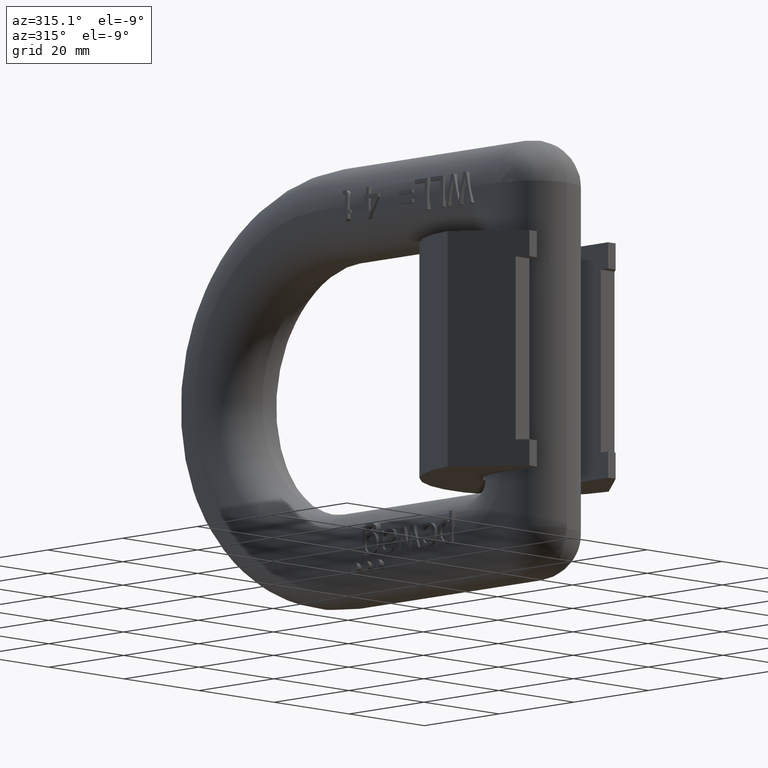
[diagram: clean part render]
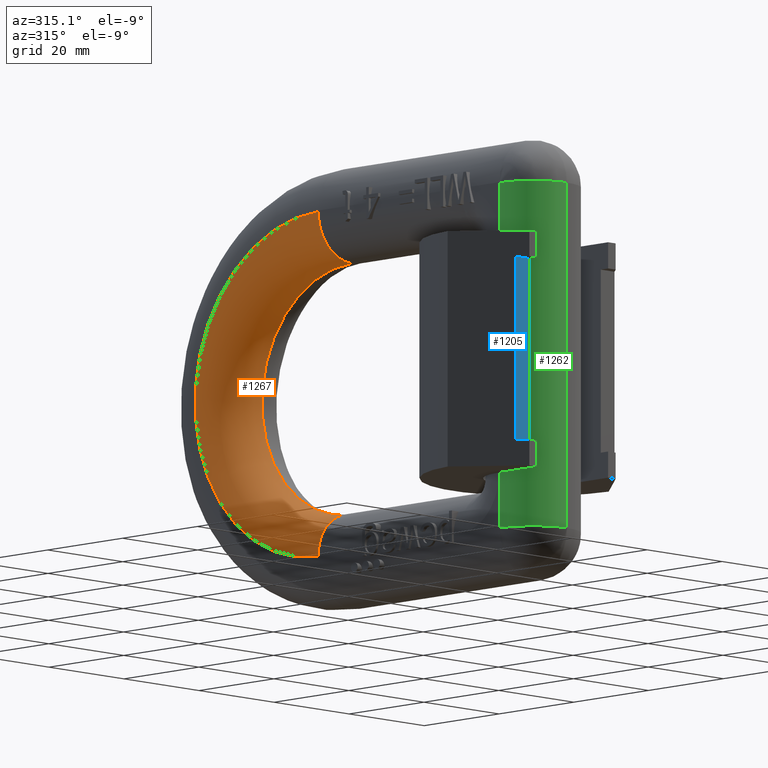
[diagram: same view with three faces highlighted in distinct colors, each labeled with its STEP entity id]
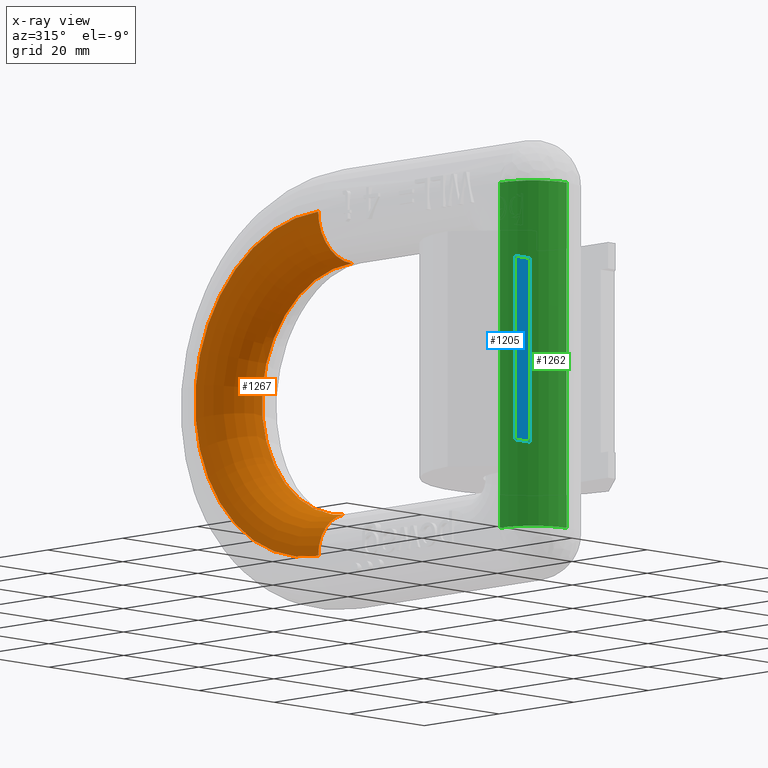
[diagram: x-ray of the same camera — body ghosted, the three highlighted faces saturated]
A machine part, auxiliary view with three faces highlighted in distinct colors.
The next image is the same camera in x-ray (body ghosted, the three faces saturated) — at least one of them is partly hidden behind the body in this view.
Their STEP definitions:

[orange] entity #1267 — the highlighted toroidal blend (fillet) surface has major radius 32.9 mm and minor (blend) radius 8.9 mm.
#159=TOROIDAL_SURFACE('',#8873,32.9,8.9);
#1267=ADVANCED_FACE('',(#1780),#159,.T.);
#1780=FACE_OUTER_BOUND('',#2224,.T.);
#2224=EDGE_LOOP('',(#3233,#3234,#3235,#3236));
#2645=CIRCLE('',#8741,24.);
#2668=CIRCLE('',#8786,8.9);
#2696=CIRCLE('',#8835,32.9);
#2699=CIRCLE('',#8850,8.9);
#3233=ORIENTED_EDGE('',*,*,#6455,.T.);
#3234=ORIENTED_EDGE('',*,*,#6230,.F.);
#3235=ORIENTED_EDGE('',*,*,#6313,.T.);
#3236=ORIENTED_EDGE('',*,*,#6426,.F.);
#5361=VERTEX_POINT('',#11088);
#5363=VERTEX_POINT('',#11094);
#5433=VERTEX_POINT('',#11306);
#5526=VERTEX_POINT('',#11922);
#6230=EDGE_CURVE('',#5363,#5361,#2645,.T.);
#6313=EDGE_CURVE('',#5363,#5433,#2668,.T.);
#6426=EDGE_CURVE('',#5526,#5433,#2696,.T.);
#6455=EDGE_CURVE('',#5526,#5361,#2699,.T.);
#8741=AXIS2_PLACEMENT_3D('',#11095,#9344,#9345);
#8786=AXIS2_PLACEMENT_3D('',#11307,#9479,#9480);
#8835=AXIS2_PLACEMENT_3D('',#11923,#9617,#9618);
#8850=AXIS2_PLACEMENT_3D('',#12088,#9658,#9659);
#8873=AXIS2_PLACEMENT_3D('',#12551,#9714,#9715);
#9344=DIRECTION('',(-1.,0.,0.));
#9345=DIRECTION('',(0.,0.,1.));
#9479=DIRECTION('',(-7.79651000439014E-16,1.,-7.79651000439014E-16));
#9480=DIRECTION('',(-1.,-7.79651000439014E-16,0.));
#9617=DIRECTION('',(1.,0.,0.));
#9618=DIRECTION('',(0.,0.,1.));
#9658=DIRECTION('',(0.,1.,7.79651000439015E-16));
#9659=DIRECTION('',(0.,-7.79651000439014E-16,1.));
#9714=DIRECTION('',(-1.,0.,0.));
#9715=DIRECTION('',(0.,0.,1.));
#11088=CARTESIAN_POINT('',(-0.100000000000001,59.,-24.));
#11094=CARTESIAN_POINT('',(-0.100000000000001,59.,24.));
#11095=CARTESIAN_POINT('',(-0.100000000000001,59.,0.));
#11306=CARTESIAN_POINT('',(-9.,59.,32.9));
#11307=CARTESIAN_POINT('',(-0.100000000000001,59.,32.9));
#11922=CARTESIAN_POINT('',(-9.,59.,-32.9));
#11923=CARTESIAN_POINT('',(-9.,59.,0.));
#12088=CARTESIAN_POINT('',(-0.100000000000001,59.,-32.9));
#12551=CARTESIAN_POINT('',(-0.100000000000001,59.,0.));

[blue] entity #1205 — the highlighted planar face has unit normal (0, -1, 0).
#946=PLANE('',#8720);
#1205=ADVANCED_FACE('',(#1721),#946,.T.);
#1721=FACE_OUTER_BOUND('',#2157,.T.);
#2157=EDGE_LOOP('',(#2786,#2787,#2788,#2789));
#2786=ORIENTED_EDGE('',*,*,#6188,.F.);
#2787=ORIENTED_EDGE('',*,*,#6189,.T.);
#2788=ORIENTED_EDGE('',*,*,#6190,.T.);
#2789=ORIENTED_EDGE('',*,*,#6191,.T.);
#5338=VERTEX_POINT('',#11010);
#5339=VERTEX_POINT('',#11011);
#5340=VERTEX_POINT('',#11013);
#5341=VERTEX_POINT('',#11015);
#6188=EDGE_CURVE('',#5338,#5339,#7462,.T.);
#6189=EDGE_CURVE('',#5338,#5340,#7463,.T.);
#6190=EDGE_CURVE('',#5340,#5341,#7464,.T.);
#6191=EDGE_CURVE('',#5341,#5339,#7465,.T.);
#7462=LINE('',#11009,#8030);
#7463=LINE('',#11012,#8031);
#7464=LINE('',#11014,#8032);
#7465=LINE('',#11016,#8033);
#8030=VECTOR('',#9263,1.);
#8031=VECTOR('',#9264,1.);
#8032=VECTOR('',#9265,1.);
#8033=VECTOR('',#9266,1.);
#8720=AXIS2_PLACEMENT_3D('',#11017,#9267,#9268);
#9263=DIRECTION('',(1.,3.63081657762588E-16,0.));
#9264=DIRECTION('',(0.,0.,-1.));
#9265=DIRECTION('',(1.,3.63081657762588E-16,0.));
#9266=DIRECTION('',(0.,0.,1.));
#9267=DIRECTION('',(3.63081657762588E-16,-1.,0.));
#9268=DIRECTION('',(1.,3.62990887348147E-16,0.));
#11009=CARTESIAN_POINT('',(21.5,2.,17.5));
#11010=CARTESIAN_POINT('',(-13.1781992623546,1.99999999999999,17.5));
#11011=CARTESIAN_POINT('',(-9.5,1.99999999999999,17.5));
#11012=CARTESIAN_POINT('',(-13.1781992623546,1.99999999999999,17.5));
#11013=CARTESIAN_POINT('',(-13.1781992623545,1.99999999999999,-17.5));
#11014=CARTESIAN_POINT('',(21.5,2.,-17.5));
#11015=CARTESIAN_POINT('',(-9.5,1.99999999999999,-17.5));
#11016=CARTESIAN_POINT('',(-9.5,1.99999999999999,22.5));
#11017=CARTESIAN_POINT('',(21.5,2.,17.5));

[green] entity #1262 — the highlighted cylindrical surface (partial cylindrical patch) has radius 8.9 mm, axis along (0, 0, -1).
#1262=ADVANCED_FACE('',(#1775),#1679,.T.);
#1679=CYLINDRICAL_SURFACE('',#8868,8.9);
#1775=FACE_OUTER_BOUND('',#2219,.T.);
#2219=EDGE_LOOP('',(#3212,#3213,#3214,#3215));
#2701=CIRCLE('',#8865,8.9);
#2702=CIRCLE('',#8867,8.9);
#3212=ORIENTED_EDGE('',*,*,#6505,.T.);
#3213=ORIENTED_EDGE('',*,*,#6237,.F.);
#3214=ORIENTED_EDGE('',*,*,#6506,.F.);
#3215=ORIENTED_EDGE('',*,*,#6262,.F.);
#5366=VERTEX_POINT('',#11104);
#5369=VERTEX_POINT('',#11109);
#5386=VERTEX_POINT('',#11158);
#5387=VERTEX_POINT('',#11160);
#6237=EDGE_CURVE('',#5369,#5366,#7507,.T.);
#6262=EDGE_CURVE('',#5386,#5387,#7521,.T.);
#6505=EDGE_CURVE('',#5386,#5366,#2701,.T.);
#6506=EDGE_CURVE('',#5387,#5369,#2702,.T.);
#7507=LINE('',#11110,#8075);
#7521=LINE('',#11159,#8089);
#8075=VECTOR('',#9356,1.);
#8089=VECTOR('',#9406,1.);
#8865=AXIS2_PLACEMENT_3D('',#12491,#9698,#9699);
#8867=AXIS2_PLACEMENT_3D('',#12509,#9702,#9703);
#8868=AXIS2_PLACEMENT_3D('',#12510,#9704,#9705);
#9356=DIRECTION('',(0.,0.,-1.));
#9406=DIRECTION('',(0.,0.,1.));
#9698=DIRECTION('',(0.,0.,1.));
#9699=DIRECTION('',(1.,0.,0.));
#9702=DIRECTION('',(0.,7.79651000439014E-16,1.));
#9703=DIRECTION('',(0.,-1.,7.79651000439014E-16));
#9704=DIRECTION('',(0.,0.,-1.));
#9705=DIRECTION('',(-1.,0.,0.));
#11104=CARTESIAN_POINT('',(-0.100000000000001,1.49999999999998,-33.));
#11109=CARTESIAN_POINT('',(-0.100000000000001,1.49999999999998,33.));
#11110=CARTESIAN_POINT('',(-0.100000000000001,1.49999999999998,-33.));
#11158=CARTESIAN_POINT('',(-9.,10.4,-33.));
#11159=CARTESIAN_POINT('',(-9.,10.4,33.));
#11160=CARTESIAN_POINT('',(-9.,10.4,33.));
#12491=CARTESIAN_POINT('',(-0.100000000000001,10.4,-33.));
#12509=CARTESIAN_POINT('',(-0.100000000000001,10.4,33.));
#12510=CARTESIAN_POINT('',(-0.100000000000001,10.4,33.));